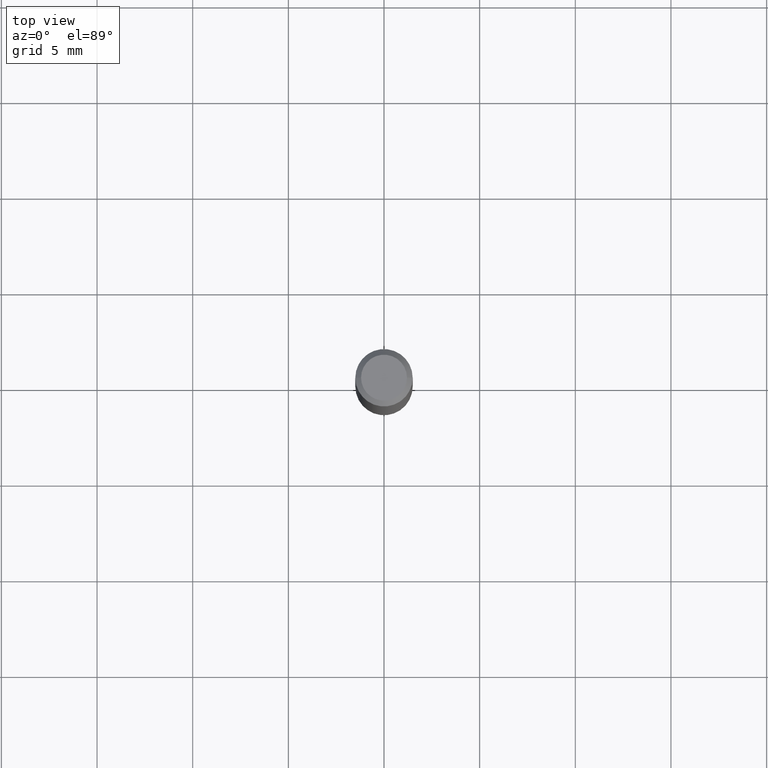
[diagram: clean part render]
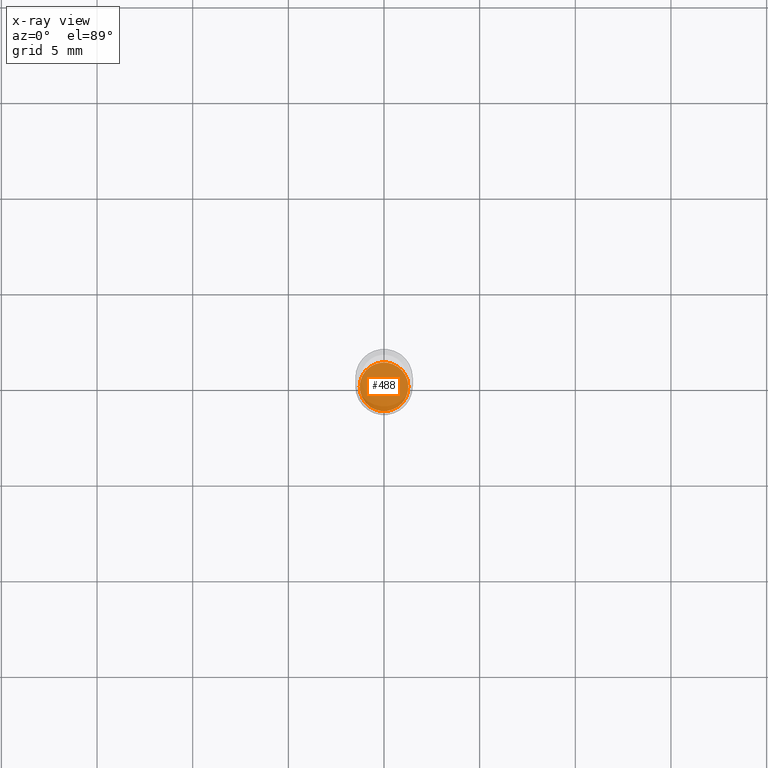
[diagram: x-ray — body ghosted, one internal face saturated and labeled with its STEP entity id]
A machine part, top view, then the same camera in x-ray: the body is ghosted and one INTERNAL B-rep face — a face not visible from any outside direction — is saturated and labeled: STEP entity #488.
In plain terms, the highlighted planar face has unit normal (-0, 0, 1).
Its self-contained STEP definition (entity closure, byte-faithful):
#48 = ORIENTED_EDGE ( 'NONE', *, *, #179, .F. ) ;
#58 = DIRECTION ( 'NONE',  ( -2.445468806185136597E-29, 3.491481338843145583E-15, 1.000000000000000000 ) ) ;
#60 = DIRECTION ( 'NONE',  ( -2.445468806185136597E-29, 3.491481338843145583E-15, 1.000000000000000000 ) ) ;
#74 = CIRCLE ( 'NONE', #143, 0.05009999999999999870 ) ;
#82 = AXIS2_PLACEMENT_3D ( 'NONE', #468, #58, #399 ) ;
#143 = AXIS2_PLACEMENT_3D ( 'NONE', #486, #60, #335 ) ;
#169 = AXIS2_PLACEMENT_3D ( 'NONE', #239, #347, #348 ) ;
#179 = EDGE_CURVE ( 'NONE', #285, #267, #477, .T. ) ;
#200 = FACE_OUTER_BOUND ( 'NONE', #245, .T. ) ;
#239 = CARTESIAN_POINT ( 'NONE',  ( 5.928219277546781995E-30, -6.805465875329427996E-15, -1.094500000000000028 ) ) ;
#245 = EDGE_LOOP ( 'NONE', ( #48, #250 ) ) ;
#250 = ORIENTED_EDGE ( 'NONE', *, *, #408, .F. ) ;
#267 = VERTEX_POINT ( 'NONE', #270 ) ;
#270 = CARTESIAN_POINT ( 'NONE',  ( -0.05009999999999999870, -3.462795187573901536E-15, -1.094500000000000028 ) ) ;
#285 = VERTEX_POINT ( 'NONE', #308 ) ;
#308 = CARTESIAN_POINT ( 'NONE',  ( 0.05009999999999999870, -4.171272755515905499E-15, -1.094500000000000028 ) ) ;
#318 = PLANE ( 'NONE',  #169 ) ;
#335 = DIRECTION ( 'NONE',  ( 1.000000000000000000, -6.982962677686269077E-15, 0.000000000000000000 ) ) ;
#347 = DIRECTION ( 'NONE',  ( -2.438088387897960049E-29, 3.491481338843145188E-15, 1.000000000000000000 ) ) ;
#348 = DIRECTION ( 'NONE',  ( 1.000000000000000000, -6.982962677686265922E-15, 4.876176775795935793E-29 ) ) ;
#399 = DIRECTION ( 'NONE',  ( 1.000000000000000000, -6.982962677686269077E-15, 0.000000000000000000 ) ) ;
#408 = EDGE_CURVE ( 'NONE', #267, #285, #74, .T. ) ;
#468 = CARTESIAN_POINT ( 'NONE',  ( 2.676565608369632355E-29, -3.821426325363822773E-15, -1.094500000000000028 ) ) ;
#477 = CIRCLE ( 'NONE', #82, 0.05009999999999999870 ) ;
#486 = CARTESIAN_POINT ( 'NONE',  ( 2.676565608369632355E-29, -3.821426325363822773E-15, -1.094500000000000028 ) ) ;
#488 = ADVANCED_FACE ( 'NONE', ( #200 ), #318, .F. ) ;